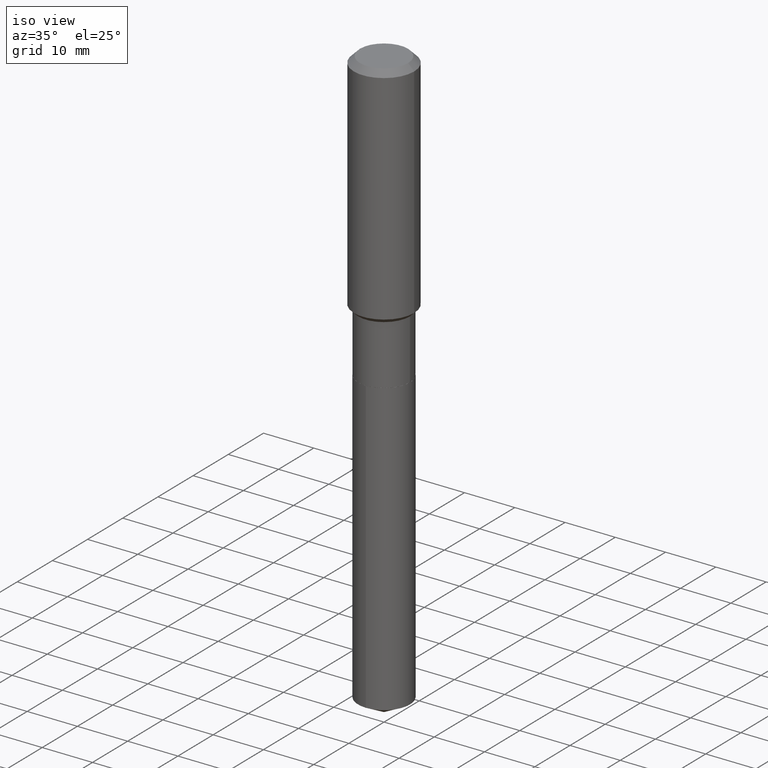
[diagram: clean part render]
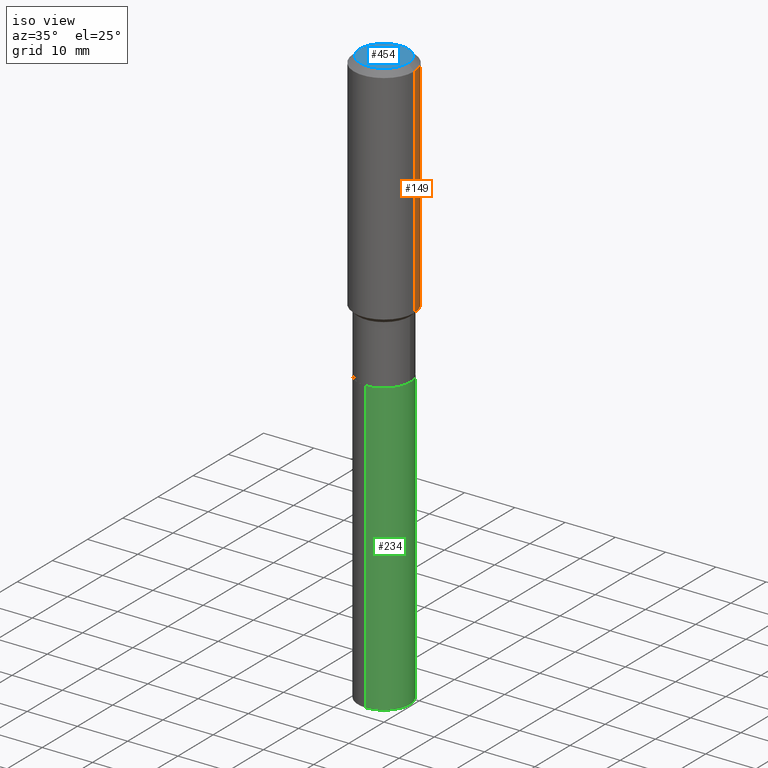
[diagram: same view with three faces highlighted in distinct colors, each labeled with its STEP entity id]
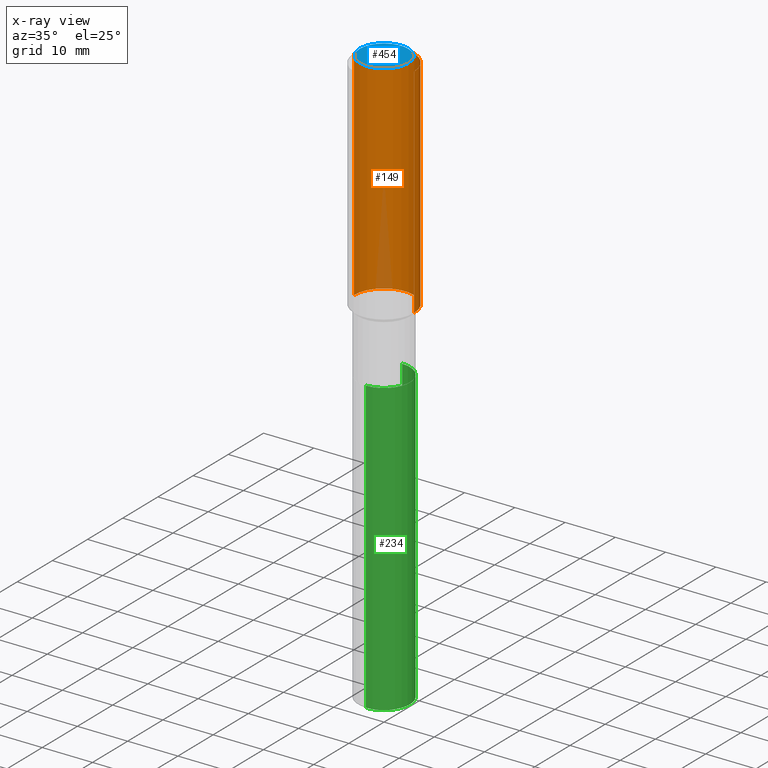
[diagram: x-ray of the same camera — body ghosted, the three highlighted faces saturated]
A machine part, iso view with three faces highlighted in distinct colors.
The next image is the same camera in x-ray (body ghosted, the three faces saturated) — at least one of them is partly hidden behind the body in this view.
Their STEP definitions:

[orange] entity #149 — the highlighted cylindrical surface (partial cylindrical patch) has radius 5.9995 mm, axis along (-0, 0, 1).
#4 = VECTOR ( 'NONE', #411, 39.37007874015748143 ) ;
#12 = VERTEX_POINT ( 'NONE', #103 ) ;
#23 = ORIENTED_EDGE ( 'NONE', *, *, #116, .F. ) ;
#32 = CIRCLE ( 'NONE', #99, 0.2361999999999999933 ) ;
#34 = CIRCLE ( 'NONE', #229, 0.2362000000000002431 ) ;
#70 = VERTEX_POINT ( 'NONE', #85 ) ;
#74 = DIRECTION ( 'NONE',  ( 1.000000000000000000, -6.982962677686266711E-15, 4.876176775795936353E-29 ) ) ;
#85 = CARTESIAN_POINT ( 'NONE',  ( 0.2361999999999999933, -1.814313362916447440E-15, -0.04724000000000026789 ) ) ;
#86 = FACE_OUTER_BOUND ( 'NONE', #97, .T. ) ;
#89 = VERTEX_POINT ( 'NONE', #306 ) ;
#95 = ORIENTED_EDGE ( 'NONE', *, *, #211, .F. ) ;
#97 = EDGE_LOOP ( 'NONE', ( #292, #246, #23, #95 ) ) ;
#99 = AXIS2_PLACEMENT_3D ( 'NONE', #122, #121, #449 ) ;
#103 = CARTESIAN_POINT ( 'NONE',  ( -0.2362000000000002431, -4.456230770482048538E-15, -1.756999999999999895 ) ) ;
#116 = EDGE_CURVE ( 'NONE', #70, #248, #32, .T. ) ;
#119 = DIRECTION ( 'NONE',  ( -2.445468806185136597E-29, 3.491481338843145583E-15, 1.000000000000000000 ) ) ;
#121 = DIRECTION ( 'NONE',  ( -2.445468806185136597E-29, 3.491481338843145583E-15, 1.000000000000000000 ) ) ;
#122 = CARTESIAN_POINT ( 'NONE',  ( 1.155239464041864981E-30, -1.649375784469511119E-16, -0.04724000000000026789 ) ) ;
#149 = ADVANCED_FACE ( 'NONE', ( #86 ), #235, .T. ) ;
#167 = CARTESIAN_POINT ( 'NONE',  ( 4.296688692467284902E-29, -6.134532712347405721E-15, -1.756999999999999895 ) ) ;
#190 = AXIS2_PLACEMENT_3D ( 'NONE', #419, #119, #74 ) ;
#211 = EDGE_CURVE ( 'NONE', #89, #70, #416, .T. ) ;
#229 = AXIS2_PLACEMENT_3D ( 'NONE', #167, #461, #470 ) ;
#235 = CYLINDRICAL_SURFACE ( 'NONE', #190, 0.2362000000000001321 ) ;
#246 = ORIENTED_EDGE ( 'NONE', *, *, #488, .T. ) ;
#248 = VERTEX_POINT ( 'NONE', #323 ) ;
#261 = EDGE_CURVE ( 'NONE', #89, #12, #34, .T. ) ;
#264 = CARTESIAN_POINT ( 'NONE',  ( 0.2362000000000001321, -1.649375784469497117E-15, 1.151752954443000789E-29 ) ) ;
#292 = ORIENTED_EDGE ( 'NONE', *, *, #261, .T. ) ;
#306 = CARTESIAN_POINT ( 'NONE',  ( 0.2362000000000002431, -7.783908496816903035E-15, -1.756999999999999895 ) ) ;
#323 = CARTESIAN_POINT ( 'NONE',  ( -0.2361999999999999933, -1.471433203531820740E-15, -0.04724000000000026789 ) ) ;
#396 = VECTOR ( 'NONE', #399, 39.37007874015748143 ) ;
#399 = DIRECTION ( 'NONE',  ( -2.445468806185136877E-29, 3.491481338843145188E-15, 1.000000000000000000 ) ) ;
#411 = DIRECTION ( 'NONE',  ( -2.445468806185136877E-29, 3.491481338843145188E-15, 1.000000000000000000 ) ) ;
#416 = LINE ( 'NONE', #264, #4 ) ;
#419 = CARTESIAN_POINT ( 'NONE',  ( 0.000000000000000000, 0.000000000000000000, 0.000000000000000000 ) ) ;
#428 = LINE ( 'NONE', #471, #396 ) ;
#449 = DIRECTION ( 'NONE',  ( 1.000000000000000000, -6.982962677686266711E-15, 0.000000000000000000 ) ) ;
#461 = DIRECTION ( 'NONE',  ( -2.445468806185136597E-29, 3.491481338843145583E-15, 1.000000000000000000 ) ) ;
#470 = DIRECTION ( 'NONE',  ( 1.000000000000000000, -6.982962677686265922E-15, 0.000000000000000000 ) ) ;
#471 = CARTESIAN_POINT ( 'NONE',  ( -0.2362000000000001321, 1.678301941865357577E-15, -1.161852468318209457E-29 ) ) ;
#488 = EDGE_CURVE ( 'NONE', #12, #248, #428, .T. ) ;

[blue] entity #454 — the highlighted planar face has unit normal (0, -0, -1).
#3 = CARTESIAN_POINT ( 'NONE',  ( -9.427742298522546243E-47, 1.346031739168365344E-32, 3.855188123715862256E-18 ) ) ;
#48 = CIRCLE ( 'NONE', #318, 0.1889600000000000168 ) ;
#69 = CIRCLE ( 'NONE', #451, 0.1889600000000000168 ) ;
#130 = CARTESIAN_POINT ( 'NONE',  ( 0.1889600000000000168, -1.540873453589747738E-15, 3.855188123725863225E-18 ) ) ;
#138 = CARTESIAN_POINT ( 'NONE',  ( -9.427742298522546243E-47, 1.346031739168365344E-32, 3.855188123715862256E-18 ) ) ;
#176 = DIRECTION ( 'NONE',  ( -1.000000000000000000, 6.982962677686265922E-15, -4.876176775795935793E-29 ) ) ;
#209 = DIRECTION ( 'NONE',  ( 1.000000000000000000, -6.982962677686266711E-15, 4.876185090822587894E-29 ) ) ;
#223 = ORIENTED_EDGE ( 'NONE', *, *, #467, .T. ) ;
#226 = ORIENTED_EDGE ( 'NONE', *, *, #337, .T. ) ;
#239 = CARTESIAN_POINT ( 'NONE',  ( -0.1889600000000000168, 1.401969416799070942E-15, 3.855188123706346622E-18 ) ) ;
#277 = DIRECTION ( 'NONE',  ( -2.445468806185136597E-29, 3.491481338843145583E-15, 1.000000000000000000 ) ) ;
#283 = DIRECTION ( 'NONE',  ( -2.445468806185136597E-29, 3.491481338843145583E-15, 1.000000000000000000 ) ) ;
#305 = AXIS2_PLACEMENT_3D ( 'NONE', #356, #361, #176 ) ;
#318 = AXIS2_PLACEMENT_3D ( 'NONE', #138, #283, #209 ) ;
#337 = EDGE_CURVE ( 'NONE', #408, #355, #69, .T. ) ;
#355 = VERTEX_POINT ( 'NONE', #239 ) ;
#356 = CARTESIAN_POINT ( 'NONE',  ( -4.713871149261273121E-47, 6.730158695841826722E-33, 1.927594061857931128E-18 ) ) ;
#361 = DIRECTION ( 'NONE',  ( 2.438088387897960049E-29, -3.491481338843145188E-15, -1.000000000000000000 ) ) ;
#397 = PLANE ( 'NONE',  #305 ) ;
#408 = VERTEX_POINT ( 'NONE', #130 ) ;
#435 = FACE_OUTER_BOUND ( 'NONE', #445, .T. ) ;
#445 = EDGE_LOOP ( 'NONE', ( #223, #226 ) ) ;
#451 = AXIS2_PLACEMENT_3D ( 'NONE', #3, #277, #459 ) ;
#454 = ADVANCED_FACE ( 'NONE', ( #435 ), #397, .F. ) ;
#459 = DIRECTION ( 'NONE',  ( 1.000000000000000000, -6.982962677686266711E-15, 4.876185090822587894E-29 ) ) ;
#467 = EDGE_CURVE ( 'NONE', #355, #408, #48, .T. ) ;

[green] entity #234 — the highlighted cylindrical surface (edge-blend (fillet) strip) has radius 5.1587 mm, axis along (-0, 0, 1).
#18 = ORIENTED_EDGE ( 'NONE', *, *, #220, .F. ) ;
#33 = DIRECTION ( 'NONE',  ( -6.982962677686266711E-15, -1.000000000000000000, 4.035225987687242674E-15 ) ) ;
#42 = CARTESIAN_POINT ( 'NONE',  ( 1.443112296328874924E-15, 0.2030999999999921479, -2.257200000000000539 ) ) ;
#75 = CIRCLE ( 'NONE', #346, 0.2031000000000000028 ) ;
#78 = CARTESIAN_POINT ( 'NONE',  ( 5.519912189321089648E-29, -7.880971678036746522E-15, -2.257199999999999651 ) ) ;
#83 = FACE_OUTER_BOUND ( 'NONE', #288, .T. ) ;
#100 = VECTOR ( 'NONE', #393, 39.37007874015748143 ) ;
#101 = AXIS2_PLACEMENT_3D ( 'NONE', #340, #377, #336 ) ;
#117 = CARTESIAN_POINT ( 'NONE',  ( 1.443112296328874135E-15, 0.2030999999999841821, -4.538009814429555533 ) ) ;
#128 = VERTEX_POINT ( 'NONE', #42 ) ;
#131 = DIRECTION ( 'NONE',  ( -2.445326593051058673E-29, 3.491684996145414062E-15, 1.000000000000000000 ) ) ;
#139 = ORIENTED_EDGE ( 'NONE', *, *, #303, .T. ) ;
#143 = AXIS2_PLACEMENT_3D ( 'NONE', #243, #131, #387 ) ;
#155 = EDGE_CURVE ( 'NONE', #371, #472, #417, .T. ) ;
#165 = VECTOR ( 'NONE', #198, 39.37007874015748143 ) ;
#193 = CYLINDRICAL_SURFACE ( 'NONE', #101, 0.2031000000000000028 ) ;
#198 = DIRECTION ( 'NONE',  ( -2.445326593051058953E-29, 3.491684996145414062E-15, 1.000000000000000000 ) ) ;
#213 = VERTEX_POINT ( 'NONE', #117 ) ;
#215 = CARTESIAN_POINT ( 'NONE',  ( 1.443112296328818323E-15, 0.2030999999999921202, -2.257200000000000539 ) ) ;
#220 = EDGE_CURVE ( 'NONE', #472, #128, #75, .T. ) ;
#227 = DIRECTION ( 'NONE',  ( -2.445326593051058673E-29, 3.491684996145414062E-15, 1.000000000000000000 ) ) ;
#234 = ADVANCED_FACE ( 'NONE', ( #83 ), #193, .T. ) ;
#243 = CARTESIAN_POINT ( 'NONE',  ( 1.109723708223753094E-28, -1.584484108614163035E-14, -4.538009814429554645 ) ) ;
#288 = EDGE_LOOP ( 'NONE', ( #139, #479, #18, #350 ) ) ;
#303 = EDGE_CURVE ( 'NONE', #371, #213, #414, .T. ) ;
#336 = DIRECTION ( 'NONE',  ( -6.982962677686266711E-15, -1.000000000000000000, 4.035225987687242674E-15 ) ) ;
#340 = CARTESIAN_POINT ( 'NONE',  ( 5.519912189321090769E-29, -7.880971678036748100E-15, -2.257200000000000095 ) ) ;
#346 = AXIS2_PLACEMENT_3D ( 'NONE', #78, #227, #33 ) ;
#350 = ORIENTED_EDGE ( 'NONE', *, *, #155, .F. ) ;
#371 = VERTEX_POINT ( 'NONE', #444 ) ;
#377 = DIRECTION ( 'NONE',  ( -2.445326593051058673E-29, 3.491684996145414062E-15, 1.000000000000000000 ) ) ;
#387 = DIRECTION ( 'NONE',  ( -6.982962677686266711E-15, -1.000000000000000000, 2.690150658458161520E-15 ) ) ;
#393 = DIRECTION ( 'NONE',  ( -2.445326593051058953E-29, 3.491684996145414062E-15, 1.000000000000000000 ) ) ;
#412 = CARTESIAN_POINT ( 'NONE',  ( -1.418239719838025752E-15, -0.2031000000000079131, -2.257199999999999207 ) ) ;
#414 = CIRCLE ( 'NONE', #143, 0.2031000000000000028 ) ;
#417 = LINE ( 'NONE', #412, #165 ) ;
#431 = CARTESIAN_POINT ( 'NONE',  ( -1.418239719838025752E-15, -0.2031000000000079131, -2.257199999999998763 ) ) ;
#439 = LINE ( 'NONE', #215, #100 ) ;
#440 = EDGE_CURVE ( 'NONE', #213, #128, #439, .T. ) ;
#444 = CARTESIAN_POINT ( 'NONE',  ( -1.418239719837969940E-15, -0.2031000000000158512, -4.538009814429553757 ) ) ;
#472 = VERTEX_POINT ( 'NONE', #431 ) ;
#479 = ORIENTED_EDGE ( 'NONE', *, *, #440, .T. ) ;